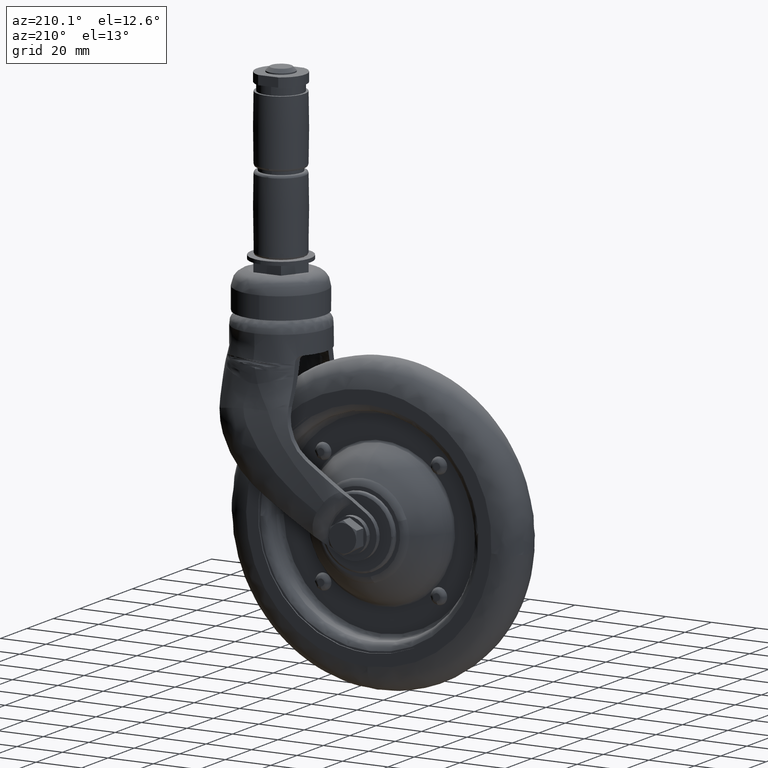
[diagram: clean part render]
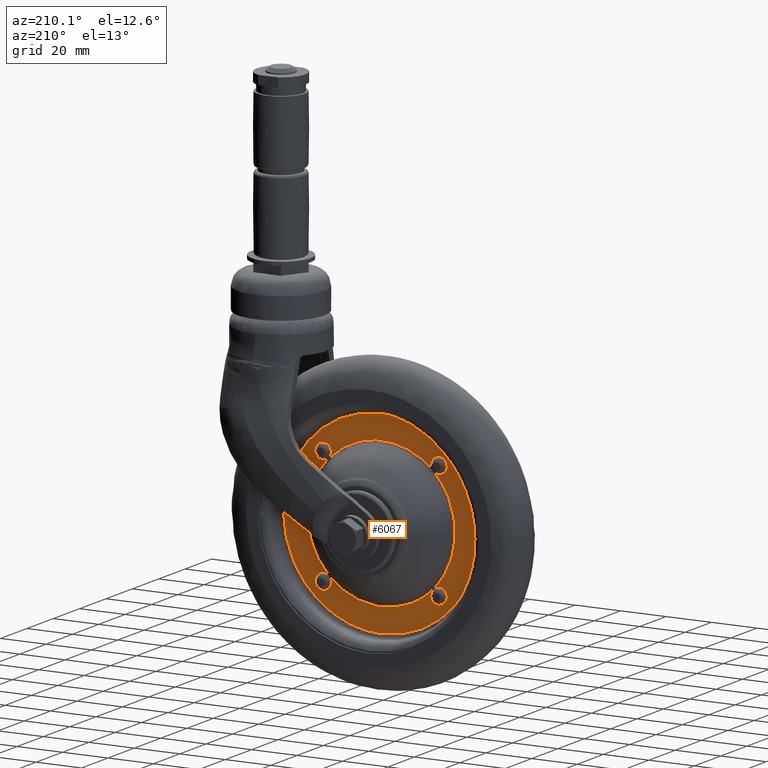
[diagram: same view with one face highlighted and labeled with its STEP entity id]
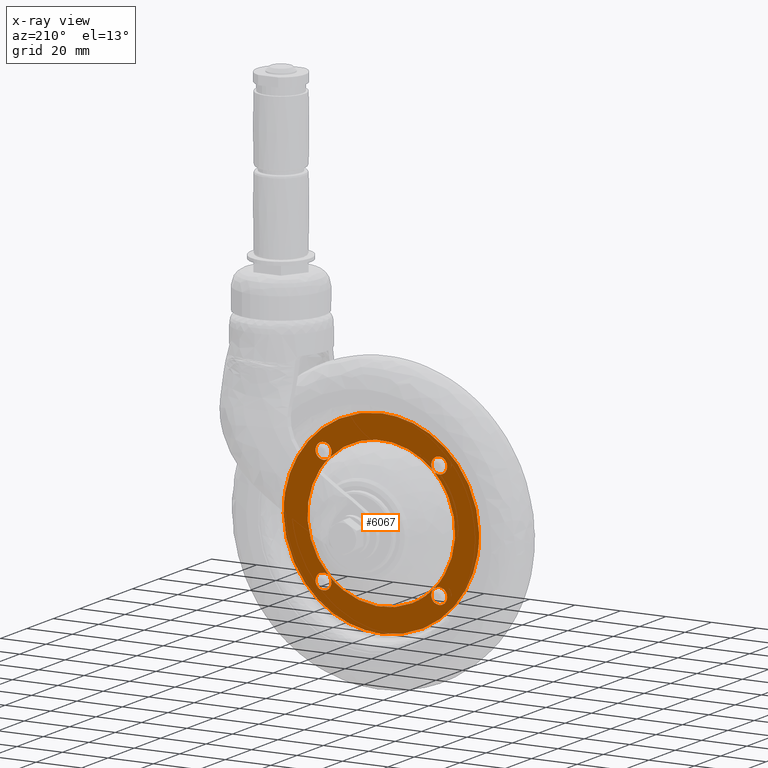
[diagram: x-ray of the same camera — body ghosted, the highlighted face saturated]
A machine part, auxiliary view. The second image highlights one B-rep face of the part: STEP entity #6067.
The next image is the same camera in x-ray: the body ghosted, the highlighted face saturated — about 0% of this face is hidden behind the body in this view.
In plain terms, the highlighted face is a freeform B-spline surface patch.
Its self-contained STEP definition (entity closure, byte-faithful):
#1773=CARTESIAN_POINT('',(-29.581760012808711,1.500000000000001,13.468716156602580));
#1774=VERTEX_POINT('',#1773);
#1788=CARTESIAN_POINT('',(-23.090573033364201,1.500000000000000,22.876019731878198));
#1789=VERTEX_POINT('',#1788);
#1790=CARTESIAN_POINT('',(-23.090573033364191,1.500000000000000,22.876019731878198));
#1791=CARTESIAN_POINT('',(-27.176240963526467,1.500000000000000,18.752032480721009));
#1792=CARTESIAN_POINT('',(-29.581760012808708,1.500000000000000,13.468716156602582));
#1800=(BOUNDED_CURVE()B_SPLINE_CURVE(2,(#1790,#1791,#1792),.UNSPECIFIED.,.F.,.U.)B_SPLINE_CURVE_WITH_KNOTS((3,3),(0.0,0.236393661518218),.UNSPECIFIED.)CURVE()GEOMETRIC_REPRESENTATION_ITEM()RATIONAL_B_SPLINE_CURVE((1.0,0.931540284204162,0.895447454175274))REPRESENTATION_ITEM(''));
#1801=EDGE_CURVE('',#1789,#1774,#1800,.T.);
#1803=CARTESIAN_POINT('',(-22.876019731878099,1.500000000000000,23.090573033364301));
#1804=VERTEX_POINT('',#1803);
#1813=CARTESIAN_POINT('',(22.876019731878198,1.500000000000000,23.090573033364201));
#1814=VERTEX_POINT('',#1813);
#1815=CARTESIAN_POINT('',(22.876019731878198,1.500000000000000,23.090573033364191));
#1816=CARTESIAN_POINT('',(1.040834E-013,1.500000000000000,45.754033053049710));
#1817=CARTESIAN_POINT('',(-22.876019731878088,1.500000000000000,23.090573033364290));
#1825=(BOUNDED_CURVE()B_SPLINE_CURVE(2,(#1815,#1816,#1817),.UNSPECIFIED.,.F.,.U.)CURVE()GEOMETRIC_REPRESENTATION_ITEM()QUASI_UNIFORM_CURVE()RATIONAL_B_SPLINE_CURVE((1.0,0.710399528666881,1.0))REPRESENTATION_ITEM(''));
#1826=EDGE_CURVE('',#1814,#1804,#1825,.T.);
#1828=CARTESIAN_POINT('',(23.090573033364301,1.500000000000000,22.876019731878099));
#1829=VERTEX_POINT('',#1828);
#1838=CARTESIAN_POINT('',(23.090573033364201,1.500000000000000,-22.876019731878198));
#1839=VERTEX_POINT('',#1838);
#1840=CARTESIAN_POINT('',(23.090573033364191,1.500000000000000,-22.876019731878191));
#1841=CARTESIAN_POINT('',(45.754033053049710,1.500000000000000,-9.714451E-014));
#1842=CARTESIAN_POINT('',(23.090573033364290,1.500000000000000,22.876019731878088));
#1850=(BOUNDED_CURVE()B_SPLINE_CURVE(2,(#1840,#1841,#1842),.UNSPECIFIED.,.F.,.U.)CURVE()GEOMETRIC_REPRESENTATION_ITEM()QUASI_UNIFORM_CURVE()RATIONAL_B_SPLINE_CURVE((1.0,0.710399528666881,1.0))REPRESENTATION_ITEM(''));
#1851=EDGE_CURVE('',#1839,#1829,#1850,.T.);
#1853=CARTESIAN_POINT('',(22.876019731878099,1.500000000000000,-23.090573033364301));
#1854=VERTEX_POINT('',#1853);
#1863=CARTESIAN_POINT('',(-13.468716156602580,1.500000000000001,-29.581760012808711));
#1864=VERTEX_POINT('',#1863);
#1865=CARTESIAN_POINT('',(-13.468716156602582,1.500000000000000,-29.581760012808708));
#1866=CARTESIAN_POINT('',(6.943162200138012,1.500000000000001,-38.875385422153393));
#1867=CARTESIAN_POINT('',(22.876019731878088,1.500000000000000,-23.090573033364290));
#1875=(BOUNDED_CURVE()B_SPLINE_CURVE(2,(#1865,#1866,#1867),.UNSPECIFIED.,.F.,.U.)B_SPLINE_CURVE_WITH_KNOTS((3,3),(0.236393661518218,1.0),.UNSPECIFIED.)CURVE()GEOMETRIC_REPRESENTATION_ITEM()RATIONAL_B_SPLINE_CURVE((0.895447454175274,0.778859244462718,1.0))REPRESENTATION_ITEM(''));
#1876=EDGE_CURVE('',#1864,#1854,#1875,.T.);
#1927=CARTESIAN_POINT('',(-22.876019731878198,1.500000000000000,-23.090573033364201));
#1928=VERTEX_POINT('',#1927);
#1929=CARTESIAN_POINT('',(-22.876019731878198,1.500000000000000,-23.090573033364180));
#1930=CARTESIAN_POINT('',(-18.752032480721009,1.500000000000000,-27.176240963526453));
#1931=CARTESIAN_POINT('',(-13.468716156602582,1.500000000000000,-29.581760012808708));
#1939=(BOUNDED_CURVE()B_SPLINE_CURVE(2,(#1929,#1930,#1931),.UNSPECIFIED.,.F.,.U.)B_SPLINE_CURVE_WITH_KNOTS((3,3),(0.0,0.236393661518218),.UNSPECIFIED.)CURVE()GEOMETRIC_REPRESENTATION_ITEM()RATIONAL_B_SPLINE_CURVE((1.0,0.931540284204162,0.895447454175274))REPRESENTATION_ITEM(''));
#1940=EDGE_CURVE('',#1928,#1864,#1939,.T.);
#1942=CARTESIAN_POINT('',(-23.090573033364301,1.500000000000000,-22.876019731878099));
#1943=VERTEX_POINT('',#1942);
#1952=CARTESIAN_POINT('',(-29.581760012808708,1.500000000000000,13.468716156602582));
#1953=CARTESIAN_POINT('',(-38.875385422153393,1.500000000000001,-6.943162200138013));
#1954=CARTESIAN_POINT('',(-23.090573033364290,1.500000000000000,-22.876019731878088));
#1962=(BOUNDED_CURVE()B_SPLINE_CURVE(2,(#1952,#1953,#1954),.UNSPECIFIED.,.F.,.U.)B_SPLINE_CURVE_WITH_KNOTS((3,3),(0.236393661518218,1.0),.UNSPECIFIED.)CURVE()GEOMETRIC_REPRESENTATION_ITEM()RATIONAL_B_SPLINE_CURVE((0.895447454175274,0.778859244462718,1.0))REPRESENTATION_ITEM(''));
#1963=EDGE_CURVE('',#1774,#1943,#1962,.T.);
#1992=CARTESIAN_POINT('',(0.0,1.500000000000000,-43.0));
#1993=VERTEX_POINT('',#1992);
#1994=CARTESIAN_POINT('',(-42.986420139943426,1.500000000000000,1.080594104088993));
#1995=VERTEX_POINT('',#1994);
#1996=CARTESIAN_POINT('',(0.0,1.500000000000000,-43.0));
#1997=CARTESIAN_POINT('',(-42.999999999999993,1.500000000000000,-42.999999999999993));
#1998=CARTESIAN_POINT('',(-43.0,1.500000000000000,0.0));
#1999=CARTESIAN_POINT('',(-43.0,1.500000000000000,0.540382381311651));
#2000=CARTESIAN_POINT('',(-42.986420139943441,1.500000000000000,1.080594104088993));
#2008=(BOUNDED_CURVE()B_SPLINE_CURVE(2,(#1996,#1997,#1998,#1999,#2000),.UNSPECIFIED.,.F.,.U.)B_SPLINE_CURVE_WITH_KNOTS((3,2,3),(0.0,0.250000000000000,0.254420108230244),.UNSPECIFIED.)CURVE()GEOMETRIC_REPRESENTATION_ITEM()RATIONAL_B_SPLINE_CURVE((1.0,0.707106781186548,1.0,0.994821521091760,0.989826157681460))REPRESENTATION_ITEM(''));
#2009=EDGE_CURVE('',#1993,#1995,#2008,.T.);
#2011=CARTESIAN_POINT('',(42.986420139943426,1.500000000000000,-1.080594104088997));
#2012=VERTEX_POINT('',#2011);
#2013=CARTESIAN_POINT('',(42.986420139943434,1.500000000000001,-1.080594104088997));
#2014=CARTESIAN_POINT('',(41.932648675755544,1.500000000000001,-43.0));
#2015=CARTESIAN_POINT('',(0.0,1.500000000000000,-43.0));
#2023=(BOUNDED_CURVE()B_SPLINE_CURVE(2,(#2013,#2014,#2015),.UNSPECIFIED.,.F.,.U.)B_SPLINE_CURVE_WITH_KNOTS((3,3),(0.754420108230244,1.0),.UNSPECIFIED.)CURVE()GEOMETRIC_REPRESENTATION_ITEM()RATIONAL_B_SPLINE_CURVE((0.989826157681460,0.712285260094788,1.0))REPRESENTATION_ITEM(''));
#2024=EDGE_CURVE('',#2012,#1993,#2023,.T.);
#2081=CARTESIAN_POINT('',(0.0,1.500000000000000,43.0));
#2082=VERTEX_POINT('',#2081);
#2083=CARTESIAN_POINT('',(-42.986420139943441,1.500000000000001,1.080594104088993));
#2084=CARTESIAN_POINT('',(-41.932648675755544,1.500000000000001,43.000000000000007));
#2085=CARTESIAN_POINT('',(0.0,1.500000000000000,43.0));
#2093=(BOUNDED_CURVE()B_SPLINE_CURVE(2,(#2083,#2084,#2085),.UNSPECIFIED.,.F.,.U.)B_SPLINE_CURVE_WITH_KNOTS((3,3),(0.254420108230244,0.500000000000000),.UNSPECIFIED.)CURVE()GEOMETRIC_REPRESENTATION_ITEM()RATIONAL_B_SPLINE_CURVE((0.989826157681460,0.712285260094788,1.0))REPRESENTATION_ITEM(''));
#2094=EDGE_CURVE('',#1995,#2082,#2093,.T.);
#2101=CARTESIAN_POINT('',(0.0,1.500000000000000,43.0));
#2102=CARTESIAN_POINT('',(42.999999999999993,1.500000000000000,42.999999999999993));
#2103=CARTESIAN_POINT('',(43.0,1.500000000000000,0.0));
#2104=CARTESIAN_POINT('',(43.0,1.500000000000000,-0.540382381311706));
#2105=CARTESIAN_POINT('',(42.986420139943441,1.500000000000000,-1.080594104088997));
#2113=(BOUNDED_CURVE()B_SPLINE_CURVE(2,(#2101,#2102,#2103,#2104,#2105),.UNSPECIFIED.,.F.,.U.)B_SPLINE_CURVE_WITH_KNOTS((3,2,3),(0.500000000000000,0.750000000000000,0.754420108230244),.UNSPECIFIED.)CURVE()GEOMETRIC_REPRESENTATION_ITEM()RATIONAL_B_SPLINE_CURVE((1.0,0.707106781186548,1.0,0.994821521091759,0.989826157681459))REPRESENTATION_ITEM(''));
#2114=EDGE_CURVE('',#2082,#2012,#2113,.T.);
#4525=CARTESIAN_POINT('',(-22.181561318949619,1.499999999984508,24.219287117129589));
#4526=VERTEX_POINT('',#4525);
#4527=CARTESIAN_POINT('',(-25.455841893200571,1.499997165853552,21.955844000005278));
#4528=VERTEX_POINT('',#4527);
#4529=CARTESIAN_POINT('',(-22.181561318949619,1.499999999984508,24.219287117129593));
#4530=CARTESIAN_POINT('',(-21.364163506599862,1.500001355037114,26.383677238332702));
#4531=CARTESIAN_POINT('',(-23.035202796993332,1.500001024170816,27.983787069409441));
#4532=CARTESIAN_POINT('',(-25.508925810327170,1.500000534372891,30.352509657652263));
#4533=CARTESIAN_POINT('',(-27.930717734209662,1.499998135425211,27.930717734005469));
#4534=CARTESIAN_POINT('',(-30.352509658092160,1.499995736477532,25.508925810358679));
#4535=CARTESIAN_POINT('',(-27.983787069948779,1.499996122265477,23.035202796935611));
#4536=CARTESIAN_POINT('',(-26.950242214857859,1.499996290596353,21.955843100599274));
#4537=CARTESIAN_POINT('',(-25.455841893200578,1.499997165853551,21.955844000005278));
#4545=(BOUNDED_CURVE()B_SPLINE_CURVE(2,(#4529,#4530,#4531,#4532,#4533,#4534,#4535,#4536,#4537),.UNSPECIFIED.,.F.,.U.)B_SPLINE_CURVE_WITH_KNOTS((3,2,2,2,3),(0.063894018477753,0.250000000000000,0.500000000000000,0.750000000000000,0.879983629714468),.UNSPECIFIED.)CURVE()GEOMETRIC_REPRESENTATION_ITEM()RATIONAL_B_SPLINE_CURVE((0.891450843555783,0.787638266009961,1.0,0.714730106666866,1.0,0.714730106666866,1.0,0.851678335265200,0.857591777310574))REPRESENTATION_ITEM(''));
#4546=EDGE_CURVE('',#4526,#4528,#4545,.T.);
#4646=CARTESIAN_POINT('',(-22.876019731878099,1.499999999999946,23.090573033364301));
#4647=CARTESIAN_POINT('',(-22.419978413175297,1.499999999999946,23.587981777584925));
#4648=CARTESIAN_POINT('',(-22.181561318949619,1.499999999984508,24.219287117129593));
#4656=(BOUNDED_CURVE()B_SPLINE_CURVE(2,(#4646,#4647,#4648),.UNSPECIFIED.,.F.,.U.)B_SPLINE_CURVE_WITH_KNOTS((3,3),(0.0,0.063894018477753),.UNSPECIFIED.)CURVE()GEOMETRIC_REPRESENTATION_ITEM()RATIONAL_B_SPLINE_CURVE((1.0,0.927091840656905,0.891450843555783))REPRESENTATION_ITEM(''));
#4657=EDGE_CURVE('',#1804,#4526,#4656,.T.);
#4660=CARTESIAN_POINT('',(-25.455841893200578,1.499997165853551,21.955844000005278));
#4661=CARTESIAN_POINT('',(-24.094216845445022,1.499998582926776,21.955844819623170));
#4662=CARTESIAN_POINT('',(-23.090573033364201,1.500000000000000,22.876019731878198));
#4670=(BOUNDED_CURVE()B_SPLINE_CURVE(2,(#4660,#4661,#4662),.UNSPECIFIED.,.F.,.U.)B_SPLINE_CURVE_WITH_KNOTS((3,3),(0.879983629714468,1.0),.UNSPECIFIED.)CURVE()GEOMETRIC_REPRESENTATION_ITEM()RATIONAL_B_SPLINE_CURVE((0.857591777310574,0.863051771401666,1.0))REPRESENTATION_ITEM(''));
#4671=EDGE_CURVE('',#4528,#1789,#4670,.T.);
#4762=CARTESIAN_POINT('',(27.673094834699270,1.499999999992371,22.747745269151011));
#4763=VERTEX_POINT('',#4762);
#4764=CARTESIAN_POINT('',(27.673094834699274,1.499999999992371,22.747745269151011));
#4765=CARTESIAN_POINT('',(27.837147849069019,1.499999999999946,22.882063371612151));
#4766=CARTESIAN_POINT('',(27.983787070010059,1.499999999999946,23.035202796767152));
#4767=CARTESIAN_POINT('',(30.352509658176047,1.499999999999946,25.508925810129686));
#4768=CARTESIAN_POINT('',(27.930717734152910,1.499999999999946,27.930717734152822));
#4769=CARTESIAN_POINT('',(25.508925810129785,1.499999999999946,30.352509658175947));
#4770=CARTESIAN_POINT('',(23.035202796767241,1.499999999999946,27.983787070009960));
#4771=CARTESIAN_POINT('',(20.561479783404700,1.499999999999946,25.615064481843973));
#4772=CARTESIAN_POINT('',(22.876019731878198,1.500000000000000,23.090573033364201));
#4780=(BOUNDED_CURVE()B_SPLINE_CURVE(2,(#4764,#4765,#4766,#4767,#4768,#4769,#4770,#4771,#4772),.UNSPECIFIED.,.F.,.U.)B_SPLINE_CURVE_WITH_KNOTS((3,2,2,2,3),(0.228868347797814,0.250000000000000,0.500000000000000,0.750000000000000,1.0),.UNSPECIFIED.)CURVE()GEOMETRIC_REPRESENTATION_ITEM()RATIONAL_B_SPLINE_CURVE((0.955850569412244,0.975887103321317,1.0,0.714730106666866,1.0,0.714730106666866,1.0,0.714730106666866,1.0))REPRESENTATION_ITEM(''));
#4781=EDGE_CURVE('',#4763,#1814,#4780,.T.);
#4834=CARTESIAN_POINT('',(25.455844000000290,1.499999999982141,21.955843999999910));
#4835=VERTEX_POINT('',#4834);
#4851=CARTESIAN_POINT('',(23.090573033364301,1.500000000000000,22.876019731878099));
#4852=CARTESIAN_POINT('',(24.094217739413878,1.499999999999946,21.955843999999679));
#4853=CARTESIAN_POINT('',(25.455844000000290,1.499999999982140,21.955843999999900));
#4861=(BOUNDED_CURVE()B_SPLINE_CURVE(2,(#4851,#4852,#4853),.UNSPECIFIED.,.F.,.U.)B_SPLINE_CURVE_WITH_KNOTS((3,3),(0.0,0.120016462546926),.UNSPECIFIED.)CURVE()GEOMETRIC_REPRESENTATION_ITEM()RATIONAL_B_SPLINE_CURVE((1.0,0.863051666124074,0.857591768916019))REPRESENTATION_ITEM(''));
#4862=EDGE_CURVE('',#1829,#4835,#4861,.T.);
#4897=CARTESIAN_POINT('',(25.455844000000290,1.499999999982140,21.955843999999900));
#4898=CARTESIAN_POINT('',(26.705884995466914,1.499999999999947,21.955844000000109));
#4899=CARTESIAN_POINT('',(27.673094834699270,1.499999999992371,22.747745269151004));
#4907=(BOUNDED_CURVE()B_SPLINE_CURVE(2,(#4897,#4898,#4899),.UNSPECIFIED.,.F.,.U.)B_SPLINE_CURVE_WITH_KNOTS((3,3),(0.120016462546926,0.228868347797813),.UNSPECIFIED.)CURVE()GEOMETRIC_REPRESENTATION_ITEM()RATIONAL_B_SPLINE_CURVE((0.857591768916019,0.852639780732394,0.955850569412244))REPRESENTATION_ITEM(''));
#4908=EDGE_CURVE('',#4835,#4763,#4907,.T.);
#4999=CARTESIAN_POINT('',(27.673094834724068,1.499999999993257,-28.163942730828509));
#5000=VERTEX_POINT('',#4999);
#5001=CARTESIAN_POINT('',(27.673094834724065,1.499999999993257,-28.163942730828513));
#5002=CARTESIAN_POINT('',(27.807702581467531,1.499999999999946,-28.053732886838198));
#5003=CARTESIAN_POINT('',(27.930717734152822,1.499999999999946,-27.930717734152910));
#5004=CARTESIAN_POINT('',(30.352509658175933,1.499999999999946,-25.508925810129785));
#5005=CARTESIAN_POINT('',(27.983787070009960,1.499999999999946,-23.035202796767241));
#5006=CARTESIAN_POINT('',(25.615064481843973,1.499999999999946,-20.561479783404685));
#5007=CARTESIAN_POINT('',(23.090573033364201,1.499999999999946,-22.876019731878198));
#5015=(BOUNDED_CURVE()B_SPLINE_CURVE(2,(#5001,#5002,#5003,#5004,#5005,#5006,#5007),.UNSPECIFIED.,.F.,.U.)B_SPLINE_CURVE_WITH_KNOTS((3,2,2,3),(0.482585822308116,0.500000000000000,0.750000000000000,1.0),.UNSPECIFIED.)CURVE()GEOMETRIC_REPRESENTATION_ITEM()RATIONAL_B_SPLINE_CURVE((0.963026366867004,0.980129037549408,1.0,0.714730106666866,1.0,0.714730106666866,1.0))REPRESENTATION_ITEM(''));
#5016=EDGE_CURVE('',#5000,#1839,#5015,.T.);
#5069=CARTESIAN_POINT('',(25.455842650181008,1.499994559010442,-28.955843999984669));
#5070=VERTEX_POINT('',#5069);
#5086=CARTESIAN_POINT('',(22.876019731878099,1.500000000000000,-23.090573033364301));
#5087=CARTESIAN_POINT('',(20.561479783404600,1.499998829061873,-25.615064481840836));
#5088=CARTESIAN_POINT('',(23.035202796767152,1.499996142158772,-27.983787069999380));
#5089=CARTESIAN_POINT('',(24.050348373186431,1.499995039530151,-28.955843457939512));
#5090=CARTESIAN_POINT('',(25.455842650181019,1.499994559010443,-28.955843999984676));
#5098=(BOUNDED_CURVE()B_SPLINE_CURVE(2,(#5086,#5087,#5088,#5089,#5090),.UNSPECIFIED.,.F.,.U.)B_SPLINE_CURVE_WITH_KNOTS((3,2,3),(0.0,0.250000000000000,0.373338891886438),.UNSPECIFIED.)CURVE()GEOMETRIC_REPRESENTATION_ITEM()RATIONAL_B_SPLINE_CURVE((1.0,0.714730106666866,1.0,0.859260509870915,0.857390241799299))REPRESENTATION_ITEM(''));
#5099=EDGE_CURVE('',#1854,#5070,#5098,.T.);
#5148=CARTESIAN_POINT('',(25.455842650181019,1.499994559010443,-28.955843999984676));
#5149=CARTESIAN_POINT('',(26.705884407112073,1.499997279501850,-28.955844481736328));
#5150=CARTESIAN_POINT('',(27.673094834724072,1.499999999993258,-28.163942730828509));
#5158=(BOUNDED_CURVE()B_SPLINE_CURVE(2,(#5148,#5149,#5150),.UNSPECIFIED.,.F.,.U.)B_SPLINE_CURVE_WITH_KNOTS((3,3),(0.373338891886438,0.482585822308117),.UNSPECIFIED.)CURVE()GEOMETRIC_REPRESENTATION_ITEM()RATIONAL_B_SPLINE_CURVE((0.857390241799299,0.855733659331558,0.963026366867004))REPRESENTATION_ITEM(''));
#5159=EDGE_CURVE('',#5070,#5000,#5158,.T.);
#5250=CARTESIAN_POINT('',(-22.607452873219788,1.499999999990154,-27.489724033059812));
#5251=VERTEX_POINT('',#5250);
#5252=CARTESIAN_POINT('',(-22.607452873219795,1.499999999990154,-27.489724033059808));
#5253=CARTESIAN_POINT('',(-20.959149567873009,1.499999999999946,-25.181322143168348));
#5254=CARTESIAN_POINT('',(-22.876019731878198,1.499999999999946,-23.090573033364201));
#5262=(BOUNDED_CURVE()B_SPLINE_CURVE(2,(#5252,#5253,#5254),.UNSPECIFIED.,.F.,.U.)B_SPLINE_CURVE_WITH_KNOTS((3,3),(0.782282380347794,1.0),.UNSPECIFIED.)CURVE()GEOMETRIC_REPRESENTATION_ITEM()RATIONAL_B_SPLINE_CURVE((0.935839898027909,0.751566871460284,1.0))REPRESENTATION_ITEM(''));
#5263=EDGE_CURVE('',#5251,#1928,#5262,.T.);
#5316=CARTESIAN_POINT('',(-25.455842650181111,1.499994559010442,-28.955843999984570));
#5317=VERTEX_POINT('',#5316);
#5333=CARTESIAN_POINT('',(-23.090573033364301,1.500000000000000,-22.876019731878099));
#5334=CARTESIAN_POINT('',(-25.615064481844083,1.500001035670960,-20.561479783407471));
#5335=CARTESIAN_POINT('',(-27.983787070010059,1.499998396603284,-23.035202796762711));
#5336=CARTESIAN_POINT('',(-30.352509658176047,1.499995757535608,-25.508925810117962));
#5337=CARTESIAN_POINT('',(-27.930717734152910,1.499994607443906,-27.930717734137890));
#5338=CARTESIAN_POINT('',(-26.905590909192490,1.499994120618492,-28.955844559096956));
#5339=CARTESIAN_POINT('',(-25.455842650181111,1.499994559010443,-28.955843999984566));
#5347=(BOUNDED_CURVE()B_SPLINE_CURVE(2,(#5333,#5334,#5335,#5336,#5337,#5338,#5339),.UNSPECIFIED.,.F.,.U.)B_SPLINE_CURVE_WITH_KNOTS((3,2,2,3),(0.0,0.250000000000000,0.500000000000000,0.626661108113562),.UNSPECIFIED.)CURVE()GEOMETRIC_REPRESENTATION_ITEM()RATIONAL_B_SPLINE_CURVE((1.0,0.714730106666866,1.0,0.714730106666866,1.0,0.855469596795950,0.857390241799299))REPRESENTATION_ITEM(''));
#5348=EDGE_CURVE('',#1943,#5317,#5347,.T.);
#5383=CARTESIAN_POINT('',(-25.455842650181111,1.499994559010443,-28.955843999984566));
#5384=CARTESIAN_POINT('',(-24.050348373421141,1.499996681465336,-28.955843458272525));
#5385=CARTESIAN_POINT('',(-23.035202797254829,1.499998970012650,-27.983787070689960));
#5386=CARTESIAN_POINT('',(-22.798164351890300,1.499999504392852,-27.756810033771377));
#5387=CARTESIAN_POINT('',(-22.607452873219792,1.499999999990154,-27.489724033059812));
#5395=(BOUNDED_CURVE()B_SPLINE_CURVE(2,(#5383,#5384,#5385,#5386,#5387),.UNSPECIFIED.,.F.,.U.)B_SPLINE_CURVE_WITH_KNOTS((3,2,3),(0.626661108113562,0.750000000000000,0.782282380347793),.UNSPECIFIED.)CURVE()GEOMETRIC_REPRESENTATION_ITEM()RATIONAL_B_SPLINE_CURVE((0.857390241799299,0.859260509870915,1.0,0.963163235206581,0.935839898027910))REPRESENTATION_ITEM(''));
#5396=EDGE_CURVE('',#5317,#5251,#5395,.T.);
#6036=CARTESIAN_POINT('',(-47.280763345291739,1.500000000000000,47.295699833315318));
#6037=CARTESIAN_POINT('',(-47.280763345291739,1.500000000000000,-47.295702140015067));
#6038=CARTESIAN_POINT('',(47.280765651263003,1.500000000000000,47.295699833315318));
#6039=CARTESIAN_POINT('',(47.280765651263003,1.500000000000000,-47.295702140015067));
#6040=B_SPLINE_SURFACE_WITH_KNOTS('',1,1,((#6036,#6038),(#6037,#6039)),.UNSPECIFIED.,.F.,.F.,.U.,(2,2),(2,2),(0.0,94.591401973330392),(0.0,94.561528996554742),.UNSPECIFIED.);
#6041=ORIENTED_EDGE('',*,*,#2009,.T.);
#6042=ORIENTED_EDGE('',*,*,#2094,.T.);
#6043=ORIENTED_EDGE('',*,*,#2114,.T.);
#6044=ORIENTED_EDGE('',*,*,#2024,.T.);
#6045=EDGE_LOOP('',(#6041,#6042,#6043,#6044));
#6046=FACE_OUTER_BOUND('',#6045,.T.);
#6047=ORIENTED_EDGE('',*,*,#1826,.T.);
#6048=ORIENTED_EDGE('',*,*,#4657,.T.);
#6049=ORIENTED_EDGE('',*,*,#4546,.T.);
#6050=ORIENTED_EDGE('',*,*,#4671,.T.);
#6051=ORIENTED_EDGE('',*,*,#1801,.T.);
#6052=ORIENTED_EDGE('',*,*,#1963,.T.);
#6053=ORIENTED_EDGE('',*,*,#5348,.T.);
#6054=ORIENTED_EDGE('',*,*,#5396,.T.);
#6055=ORIENTED_EDGE('',*,*,#5263,.T.);
#6056=ORIENTED_EDGE('',*,*,#1940,.T.);
#6057=ORIENTED_EDGE('',*,*,#1876,.T.);
#6058=ORIENTED_EDGE('',*,*,#5099,.T.);
#6059=ORIENTED_EDGE('',*,*,#5159,.T.);
#6060=ORIENTED_EDGE('',*,*,#5016,.T.);
#6061=ORIENTED_EDGE('',*,*,#1851,.T.);
#6062=ORIENTED_EDGE('',*,*,#4862,.T.);
#6063=ORIENTED_EDGE('',*,*,#4908,.T.);
#6064=ORIENTED_EDGE('',*,*,#4781,.T.);
#6065=EDGE_LOOP('',(#6047,#6048,#6049,#6050,#6051,#6052,#6053,#6054,#6055,#6056,#6057,#6058,#6059,#6060,#6061,#6062,#6063,#6064));
#6066=FACE_BOUND('',#6065,.T.);
#6067=ADVANCED_FACE('',(#6046,#6066),#6040,.F.);